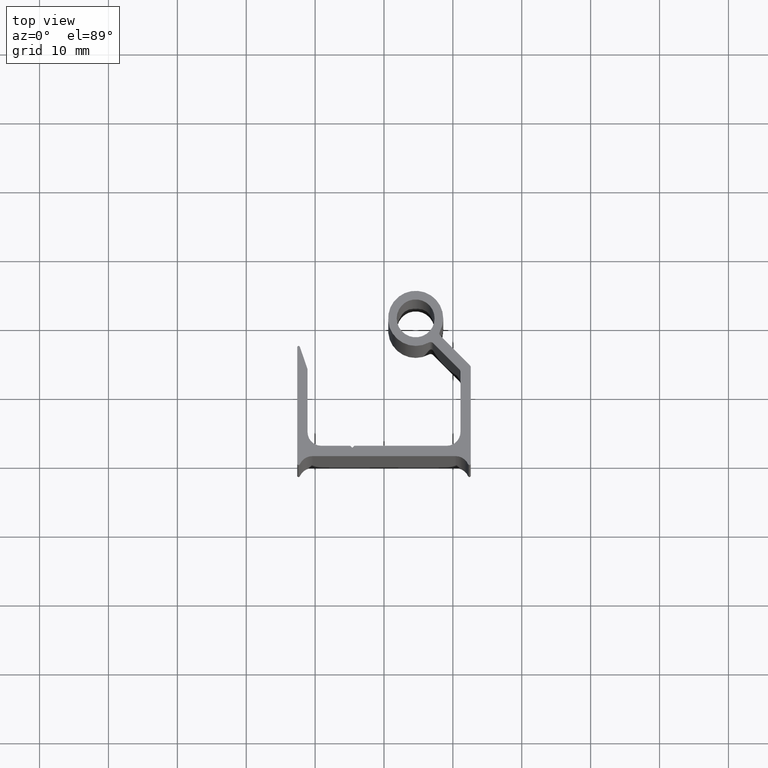
[diagram: clean part render]
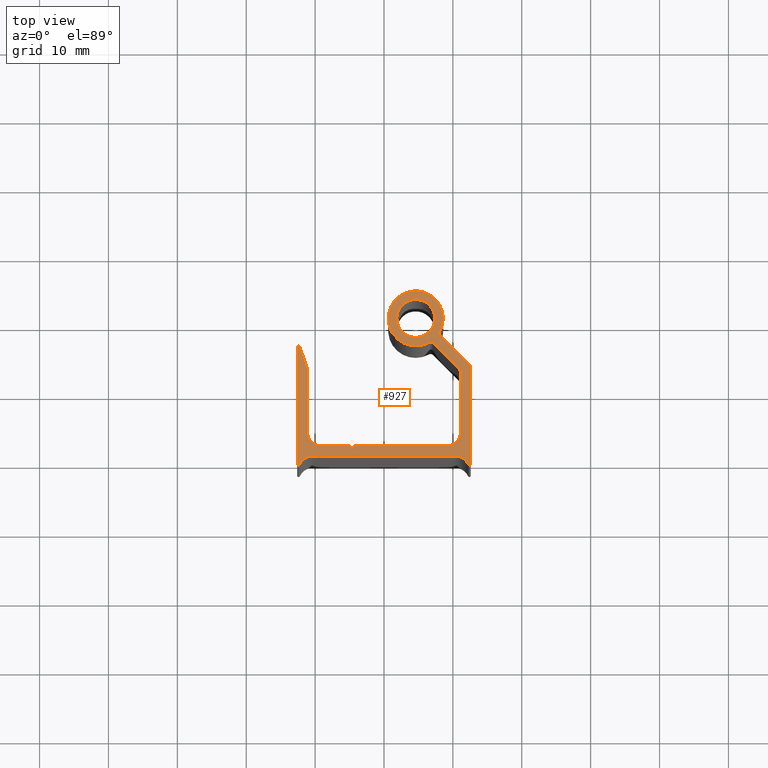
[diagram: same view with one face highlighted and labeled with its STEP entity id]
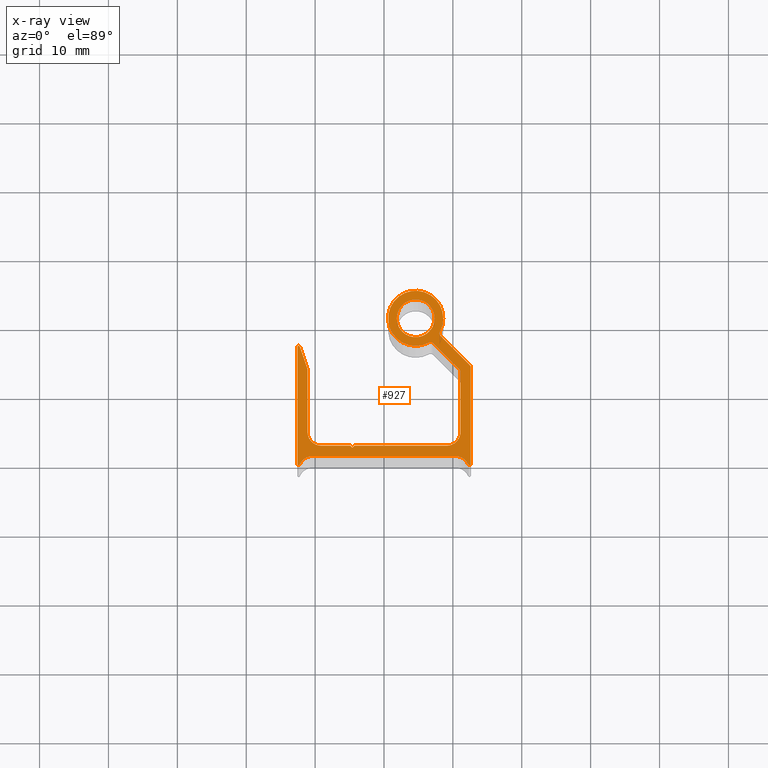
[diagram: x-ray of the same camera — body ghosted, the highlighted face saturated]
A machine part, top view. The second image highlights one B-rep face of the part: STEP entity #927.
The next image is the same camera in x-ray: the body ghosted, the highlighted face saturated — about 0% of this face is hidden behind the body in this view.
In plain terms, the highlighted planar face has unit normal (0, 0, 1).
Its self-contained STEP definition (entity closure, byte-faithful):
#18=CARTESIAN_POINT('',(12.599999999982742,-1.100000000007697,100.0));
#19=VERTEX_POINT('',#18);
#26=CARTESIAN_POINT('',(12.217501273619860,-1.181818181825179,100.0));
#27=VERTEX_POINT('',#26);
#28=CARTESIAN_POINT('',(12.399999999982814,-1.100000000007697,100.000000000000060));
#29=DIRECTION('',(0.0,0.0,1.000000000000000));
#30=DIRECTION('',(-0.912493631814552,-0.409090909087320,0.0));
#31=AXIS2_PLACEMENT_3D('',#28,#29,#30);
#32=CIRCLE('',#31,0.200000000000045);
#33=EDGE_CURVE('',#27,#19,#32,.T.);
#57=CARTESIAN_POINT('',(12.599999999982742,12.853553390585716,100.0));
#58=VERTEX_POINT('',#57);
#65=CARTESIAN_POINT('',(12.599999999982742,-1.100000000007697,100.0));
#66=DIRECTION('',(0.0,1.0,0.0));
#67=VECTOR('',#66,13.953553390593413);
#68=LINE('',#65,#67);
#69=EDGE_CURVE('',#19,#58,#68,.T.);
#89=CARTESIAN_POINT('',(12.453553390576303,13.207106781178709,100.0));
#90=VERTEX_POINT('',#89);
#97=CARTESIAN_POINT('',(12.099999999982742,12.853553390585716,100.0));
#98=DIRECTION('',(0.0,0.0,1.0));
#99=DIRECTION('',(1.0,0.0,0.0));
#100=AXIS2_PLACEMENT_3D('',#97,#98,#99);
#101=CIRCLE('',#100,0.500000000000000);
#102=EDGE_CURVE('',#58,#90,#101,.T.);
#121=CARTESIAN_POINT('',(8.187084901032790,17.473575270722563,100.0));
#122=VERTEX_POINT('',#121);
#129=CARTESIAN_POINT('',(12.453553390576303,13.207106781178709,100.0));
#130=DIRECTION('',(-0.707106781186519,0.707106781186576,0.0));
#131=VECTOR('',#130,6.033697601350130);
#132=LINE('',#129,#131);
#133=EDGE_CURVE('',#90,#122,#132,.T.);
#153=CARTESIAN_POINT('',(8.102789592555155,18.068558810057709,100.0));
#154=VERTEX_POINT('',#153);
#161=CARTESIAN_POINT('',(8.540638291626353,17.827128661315559,100.000000000000060));
#162=DIRECTION('',(0.0,0.0,-1.000000000000000));
#163=DIRECTION('',(-0.875697398142397,0.482860297484310,0.0));
#164=AXIS2_PLACEMENT_3D('',#161,#162,#163);
#165=CIRCLE('',#164,0.499999999999998);
#166=EDGE_CURVE('',#122,#154,#165,.T.);
#186=CARTESIAN_POINT('',(6.531441189920997,16.497210407424461,100.0));
#187=VERTEX_POINT('',#186);
#194=CARTESIAN_POINT('',(4.599999999985585,19.999999999995058,100.0));
#195=DIRECTION('',(0.0,0.0,1.0));
#196=DIRECTION('',(0.875697398142385,-0.482860297484332,0.0));
#197=AXIS2_PLACEMENT_3D('',#194,#195,#196);
#198=CIRCLE('',#197,4.000000000000036);
#199=EDGE_CURVE('',#154,#187,#198,.T.);
#219=CARTESIAN_POINT('',(7.126424729256428,16.412915098946087,100.0));
#220=VERTEX_POINT('',#219);
#227=CARTESIAN_POINT('',(6.772871338662869,16.059361708353094,100.0));
#228=DIRECTION('',(0.0,0.0,-1.0));
#229=DIRECTION('',(0.707106781187116,0.707106781185979,0.0));
#230=AXIS2_PLACEMENT_3D('',#227,#228,#229);
#231=CIRCLE('',#230,0.500000000000004);
#232=EDGE_CURVE('',#187,#220,#231,.T.);
#251=CARTESIAN_POINT('',(10.953553390579941,12.585786437622346,100.0));
#252=VERTEX_POINT('',#251);
#259=CARTESIAN_POINT('',(7.126424729256428,16.412915098946087,100.0));
#260=DIRECTION('',(0.707106781186526,-0.707106781186569,0.0));
#261=VECTOR('',#260,5.412377257790661);
#262=LINE('',#259,#261);
#263=EDGE_CURVE('',#220,#252,#262,.T.);
#283=CARTESIAN_POINT('',(11.099999999986380,12.232233047029354,100.0));
#284=VERTEX_POINT('',#283);
#291=CARTESIAN_POINT('',(10.599999999986380,12.232233047029354,100.0));
#292=DIRECTION('',(0.0,0.0,-1.0));
#293=DIRECTION('',(1.0,0.0,0.0));
#294=AXIS2_PLACEMENT_3D('',#291,#292,#293);
#295=CIRCLE('',#294,0.500000000000000);
#296=EDGE_CURVE('',#252,#284,#295,.T.);
#315=CARTESIAN_POINT('',(11.099999999986380,3.499999999995794,100.0));
#316=VERTEX_POINT('',#315);
#323=CARTESIAN_POINT('',(11.099999999986380,12.232233047029354,100.0));
#324=DIRECTION('',(0.0,-1.0,0.0));
#325=VECTOR('',#324,8.732233047033560);
#326=LINE('',#323,#325);
#327=EDGE_CURVE('',#284,#316,#326,.T.);
#347=CARTESIAN_POINT('',(9.099999999986380,1.499999999995794,100.0));
#348=VERTEX_POINT('',#347);
#355=CARTESIAN_POINT('',(9.099999999986380,3.499999999995794,100.0));
#356=DIRECTION('',(0.0,0.0,-1.0));
#357=DIRECTION('',(0.0,-1.0,0.0));
#358=AXIS2_PLACEMENT_3D('',#355,#356,#357);
#359=CIRCLE('',#358,2.0);
#360=EDGE_CURVE('',#316,#348,#359,.T.);
#379=CARTESIAN_POINT('',(-4.300000000013938,1.499999999995794,100.0));
#380=VERTEX_POINT('',#379);
#387=CARTESIAN_POINT('',(9.099999999986380,1.499999999995794,100.0));
#388=DIRECTION('',(-1.0,0.0,0.0));
#389=VECTOR('',#388,13.400000000000318);
#390=LINE('',#387,#389);
#391=EDGE_CURVE('',#348,#380,#390,.T.);
#410=CARTESIAN_POINT('',(-4.599999999999795,1.200000000009823,100.0));
#411=VERTEX_POINT('',#410);
#418=CARTESIAN_POINT('',(-4.300000000013938,1.499999999995794,100.0));
#419=DIRECTION('',(-0.707106781186414,-0.707106781186682,0.0));
#420=VECTOR('',#419,0.424264068692008);
#421=LINE('',#418,#420);
#422=EDGE_CURVE('',#380,#411,#421,.T.);
#441=CARTESIAN_POINT('',(-4.899999999982811,1.499999999992326,100.0));
#442=VERTEX_POINT('',#441);
#449=CARTESIAN_POINT('',(-4.599999999999795,1.200000000009823,100.0));
#450=DIRECTION('',(-0.707106781187150,0.707106781185945,0.0));
#451=VECTOR('',#450,0.424264068687547);
#452=LINE('',#449,#451);
#453=EDGE_CURVE('',#411,#442,#452,.T.);
#472=CARTESIAN_POINT('',(-9.099999999982742,1.499999999992440,100.0));
#473=VERTEX_POINT('',#472);
#480=CARTESIAN_POINT('',(-4.899999999982811,1.499999999992326,100.0));
#481=DIRECTION('',(-1.0,0.0,0.0));
#482=VECTOR('',#481,4.199999999999932);
#483=LINE('',#480,#482);
#484=EDGE_CURVE('',#442,#473,#483,.T.);
#504=CARTESIAN_POINT('',(-11.099999999982629,3.499999999992440,100.0));
#505=VERTEX_POINT('',#504);
#512=CARTESIAN_POINT('',(-9.099999999982742,3.499999999992440,100.0));
#513=DIRECTION('',(0.0,0.0,-1.0));
#514=DIRECTION('',(1.0,0.0,0.0));
#515=AXIS2_PLACEMENT_3D('',#512,#513,#514);
#516=CIRCLE('',#515,2.0);
#517=EDGE_CURVE('',#473,#505,#516,.T.);
#536=CARTESIAN_POINT('',(-11.099999999982515,12.548870918583305,100.0));
#537=VERTEX_POINT('',#536);
#544=CARTESIAN_POINT('',(-11.099999999982629,3.499999999992440,100.0));
#545=DIRECTION('',(0.0,1.0,0.0));
#546=VECTOR('',#545,9.048870918590865);
#547=LINE('',#544,#546);
#548=EDGE_CURVE('',#505,#537,#547,.T.);
#568=CARTESIAN_POINT('',(-11.127175402978651,12.711465200364728,100.0));
#569=VERTEX_POINT('',#568);
#576=CARTESIAN_POINT('',(-11.599999999982515,12.548870918583305,100.0));
#577=DIRECTION('',(0.0,0.0,1.0));
#578=DIRECTION('',(1.0,0.0,0.0));
#579=AXIS2_PLACEMENT_3D('',#576,#577,#578);
#580=CIRCLE('',#579,0.500000000000000);
#581=EDGE_CURVE('',#537,#569,#580,.T.);
#600=CARTESIAN_POINT('',(-12.207581722814439,15.853289606367866,100.0));
#601=VERTEX_POINT('',#600);
#608=CARTESIAN_POINT('',(-11.127175402978651,12.711465200364728,100.0));
#609=DIRECTION('',(-0.325188563562592,0.945649194008062,0.0));
#610=VECTOR('',#609,3.322399496463057);
#611=LINE('',#608,#610);
#612=EDGE_CURVE('',#569,#601,#611,.T.);
#632=CARTESIAN_POINT('',(-12.599999999982742,15.798744151822405,100.0));
#633=VERTEX_POINT('',#632);
#640=CARTESIAN_POINT('',(-12.399999999982811,15.798744151822405,100.0));
#641=DIRECTION('',(0.0,0.0,1.0));
#642=DIRECTION('',(1.0,0.0,0.0));
#643=AXIS2_PLACEMENT_3D('',#640,#641,#642);
#644=CIRCLE('',#643,0.200000000000000);
#645=EDGE_CURVE('',#601,#633,#644,.T.);
#664=CARTESIAN_POINT('',(-12.599999999982856,-1.100000000007697,100.0));
#665=VERTEX_POINT('',#664);
#672=CARTESIAN_POINT('',(-12.599999999982742,15.798744151822405,100.0));
#673=DIRECTION('',(0.0,-1.0,0.0));
#674=VECTOR('',#673,16.898744151830101);
#675=LINE('',#672,#674);
#676=EDGE_CURVE('',#633,#665,#675,.T.);
#696=CARTESIAN_POINT('',(-12.217501273619860,-1.181818181825179,100.0));
#697=VERTEX_POINT('',#696);
#704=CARTESIAN_POINT('',(-12.399999999982811,-1.100000000007697,100.0));
#705=DIRECTION('',(0.0,0.0,1.0));
#706=DIRECTION('',(1.0,0.0,0.0));
#707=AXIS2_PLACEMENT_3D('',#704,#705,#706);
#708=CIRCLE('',#707,0.200000000000000);
#709=EDGE_CURVE('',#665,#697,#708,.T.);
#729=CARTESIAN_POINT('',(-10.392514009990805,0.0,100.0));
#730=VERTEX_POINT('',#729);
#737=CARTESIAN_POINT('',(-10.392514009990805,-2.0,100.0));
#738=DIRECTION('',(0.0,0.0,-1.0));
#739=DIRECTION('',(0.0,1.0,0.0));
#740=AXIS2_PLACEMENT_3D('',#737,#738,#739);
#741=CIRCLE('',#740,2.0);
#742=EDGE_CURVE('',#697,#730,#741,.T.);
#761=CARTESIAN_POINT('',(10.392514009990805,5.684342E-014,100.0));
#762=VERTEX_POINT('',#761);
#769=CARTESIAN_POINT('',(-10.392514009990805,0.0,100.0));
#770=DIRECTION('',(1.0,0.0,0.0));
#771=VECTOR('',#770,20.785028019981610);
#772=LINE('',#769,#771);
#773=EDGE_CURVE('',#730,#762,#772,.T.);
#792=CARTESIAN_POINT('',(10.392514009990805,-2.000000000000000,100.000000000000060));
#793=DIRECTION('',(0.0,0.0,-1.000000000000000));
#794=DIRECTION('',(0.912493631814514,0.409090909087404,0.0));
#795=AXIS2_PLACEMENT_3D('',#792,#793,#794);
#796=CIRCLE('',#795,2.000000000000030);
#797=EDGE_CURVE('',#762,#27,#796,.T.);
#826=CARTESIAN_POINT('',(7.350000000017189,19.999999999992440,100.0));
#827=VERTEX_POINT('',#826);
#834=CARTESIAN_POINT('',(1.850000000017189,19.999999999992440,100.0));
#835=VERTEX_POINT('',#834);
#836=CARTESIAN_POINT('',(4.600000000017189,19.999999999992440,100.0));
#837=DIRECTION('',(0.0,0.0,-1.0));
#838=DIRECTION('',(1.0,0.0,0.0));
#839=AXIS2_PLACEMENT_3D('',#836,#837,#838);
#840=CIRCLE('',#839,2.750000000000000);
#841=EDGE_CURVE('',#835,#827,#840,.T.);
#843=CARTESIAN_POINT('',(4.600000000017189,19.999999999992440,100.0));
#844=DIRECTION('',(0.0,0.0,-1.0));
#845=DIRECTION('',(1.0,0.0,0.0));
#846=AXIS2_PLACEMENT_3D('',#843,#844,#845);
#847=CIRCLE('',#846,2.750000000000000);
#848=EDGE_CURVE('',#827,#835,#847,.T.);
#891=CARTESIAN_POINT('',(-15.120120002526164,-3.830120002615388,100.0));
#892=DIRECTION('',(0.0,0.0,1.0));
#893=DIRECTION('',(1.0,0.0,0.0));
#894=AXIS2_PLACEMENT_3D('',#891,#892,#893);
#895=PLANE('',#894);
#896=ORIENTED_EDGE('',*,*,#33,.T.);
#897=ORIENTED_EDGE('',*,*,#69,.T.);
#898=ORIENTED_EDGE('',*,*,#102,.T.);
#899=ORIENTED_EDGE('',*,*,#133,.T.);
#900=ORIENTED_EDGE('',*,*,#166,.T.);
#901=ORIENTED_EDGE('',*,*,#199,.T.);
#902=ORIENTED_EDGE('',*,*,#232,.T.);
#903=ORIENTED_EDGE('',*,*,#263,.T.);
#904=ORIENTED_EDGE('',*,*,#296,.T.);
#905=ORIENTED_EDGE('',*,*,#327,.T.);
#906=ORIENTED_EDGE('',*,*,#360,.T.);
#907=ORIENTED_EDGE('',*,*,#391,.T.);
#908=ORIENTED_EDGE('',*,*,#422,.T.);
#909=ORIENTED_EDGE('',*,*,#453,.T.);
#910=ORIENTED_EDGE('',*,*,#484,.T.);
#911=ORIENTED_EDGE('',*,*,#517,.T.);
#912=ORIENTED_EDGE('',*,*,#548,.T.);
#913=ORIENTED_EDGE('',*,*,#581,.T.);
#914=ORIENTED_EDGE('',*,*,#612,.T.);
#915=ORIENTED_EDGE('',*,*,#645,.T.);
#916=ORIENTED_EDGE('',*,*,#676,.T.);
#917=ORIENTED_EDGE('',*,*,#709,.T.);
#918=ORIENTED_EDGE('',*,*,#742,.T.);
#919=ORIENTED_EDGE('',*,*,#773,.T.);
#920=ORIENTED_EDGE('',*,*,#797,.T.);
#921=EDGE_LOOP('',(#896,#897,#898,#899,#900,#901,#902,#903,#904,#905,#906,#907,#908,#909,#910,#911,#912,#913,#914,#915,#916,#917,#918,#919,#920));
#922=FACE_OUTER_BOUND('',#921,.T.);
#923=ORIENTED_EDGE('',*,*,#848,.T.);
#924=ORIENTED_EDGE('',*,*,#841,.T.);
#925=EDGE_LOOP('',(#923,#924));
#926=FACE_BOUND('',#925,.T.);
#927=ADVANCED_FACE('',(#922,#926),#895,.T.);